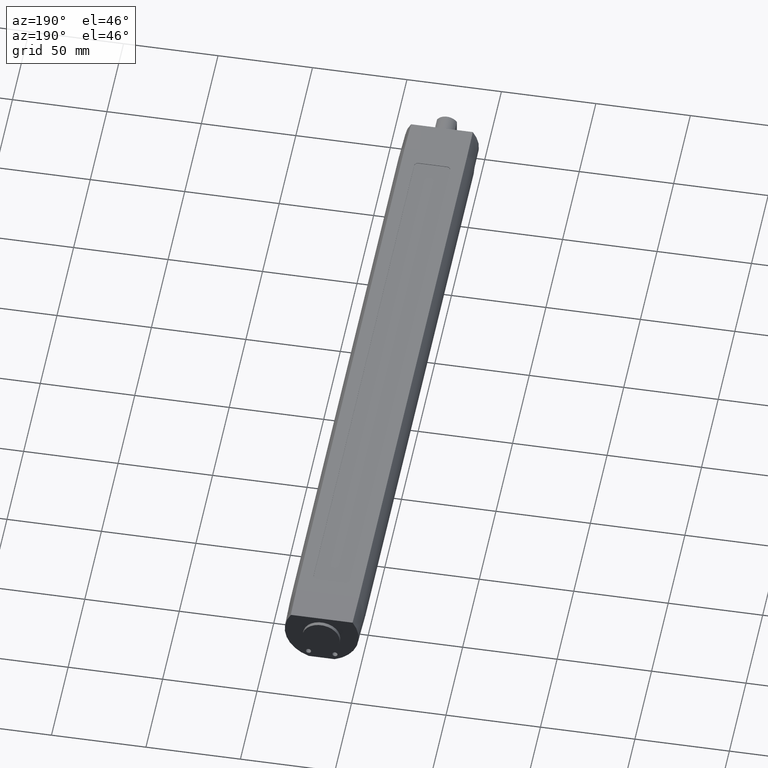
[diagram: clean part render]
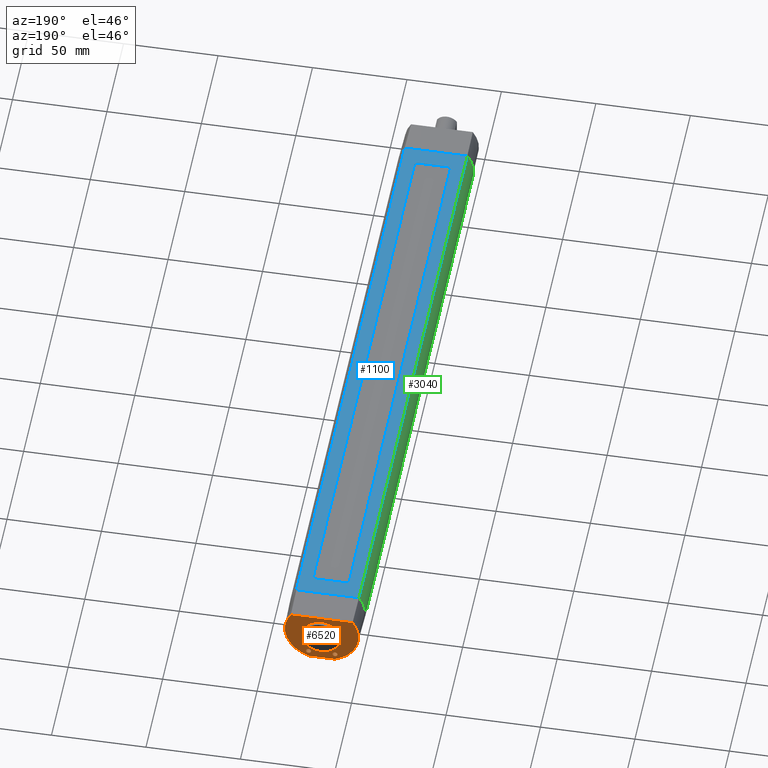
[diagram: same view with three faces highlighted in distinct colors, each labeled with its STEP entity id]
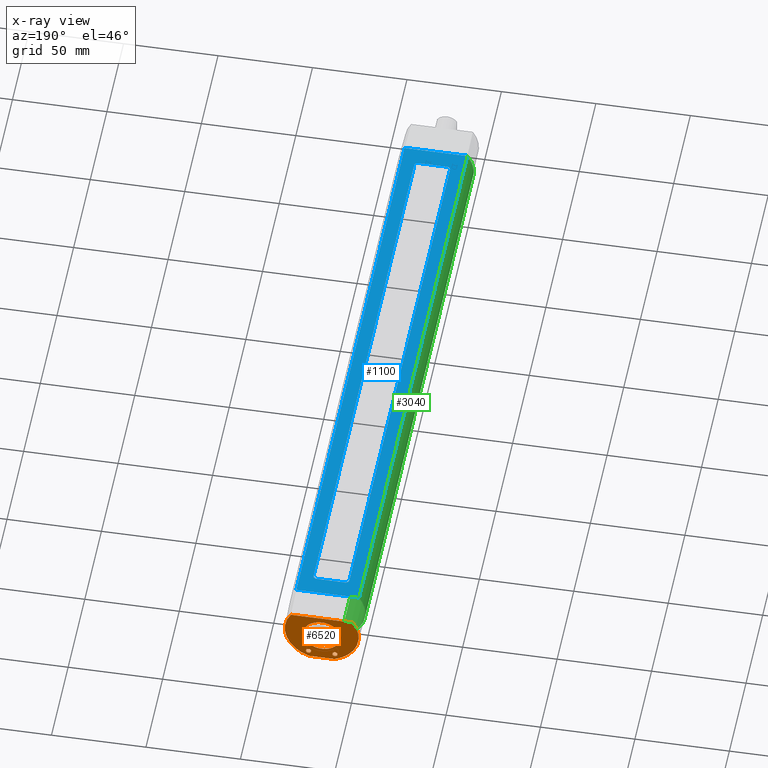
[diagram: x-ray of the same camera — body ghosted, the three highlighted faces saturated]
A machine part, auxiliary view with three faces highlighted in distinct colors.
The next image is the same camera in x-ray (body ghosted, the three faces saturated) — at least one of them is partly hidden behind the body in this view.
Their STEP definitions:

[orange] entity #6520 — the highlighted planar face has unit normal (0, -1, 0).
#2050=CARTESIAN_POINT('',(16.3345515631189,10.7600894754653,180.5));
#2060=VERTEX_POINT('',#2050);
#2090=CARTESIAN_POINT('',(-16.3345515631189,10.7600894754653,180.5));
#2100=DIRECTION('',(1.,0.,0.));
#2110=VECTOR('',#2100,1.);
#2120=LINE('',#2090,#2110);
#2130=CARTESIAN_POINT('',(-16.3345515631189,10.7600894754653,180.5));
#2140=VERTEX_POINT('',#2130);
#2150=EDGE_CURVE('',#2140,#2060,#2120,.T.);
#2490=CARTESIAN_POINT('',(6.88024154290118,-18.3100894754653,180.5));
#2500=VERTEX_POINT('',#2490);
#2550=CARTESIAN_POINT('',(0.,0.,180.5));
#2560=DIRECTION('',(0.,0.,1.));
#2570=DIRECTION('',(0.351748981083713,-0.936094361860261,0.));
#2580=AXIS2_PLACEMENT_3D('',#2550,#2560,#2570);
#2590=CIRCLE('',#2580,19.5600894754653);
#2600=EDGE_CURVE('',#2500,#2060,#2590,.T.);
#5830=CARTESIAN_POINT('',(0.,0.,180.5));
#5840=DIRECTION('',(0.,0.,-1.));
#5850=DIRECTION('',(1.,0.,0.));
#5860=AXIS2_PLACEMENT_3D('',#5830,#5840,#5850);
#5870=PLANE('',#5860);
#5880=CARTESIAN_POINT('',(0.,-1.9,180.5));
#5890=DIRECTION('',(0.,0.,-1.));
#5900=DIRECTION('',(-1.,1.12427648063307E-16,0.));
#5910=AXIS2_PLACEMENT_3D('',#5880,#5890,#5900);
#5920=CIRCLE('',#5910,9.875);
#5930=CARTESIAN_POINT('',(9.875,-1.9,180.5));
#5940=VERTEX_POINT('',#5930);
#5950=CARTESIAN_POINT('',(-9.875,-1.9,180.5));
#5960=VERTEX_POINT('',#5950);
#5970=EDGE_CURVE('',#5940,#5960,#5920,.T.);
#5980=ORIENTED_EDGE('',*,*,#5970,.T.);
#5990=EDGE_CURVE('',#5960,#5940,#5920,.T.);
#6000=ORIENTED_EDGE('',*,*,#5990,.T.);
#6010=EDGE_LOOP('',(#6000,#5980));
#6020=FACE_BOUND('',#6010,.T.);
#6030=CARTESIAN_POINT('',(0.,0.,180.5));
#6040=DIRECTION('',(0.,0.,1.));
#6050=DIRECTION('',(-1.,1.18586224797646E-15,0.));
#6060=AXIS2_PLACEMENT_3D('',#6030,#6040,#6050);
#6070=CIRCLE('',#6060,19.5600894754653);
#6080=CARTESIAN_POINT('',(-6.88024154290118,-18.3100894754653,180.5));
#6090=VERTEX_POINT('',#6080);
#6100=EDGE_CURVE('',#2140,#6090,#6070,.T.);
#6110=ORIENTED_EDGE('',*,*,#6100,.T.);
#6120=ORIENTED_EDGE('',*,*,#2150,.F.);
#6130=ORIENTED_EDGE('',*,*,#2600,.T.);
#6140=CARTESIAN_POINT('',(6.88024154290118,-18.3100894754653,180.5));
#6150=DIRECTION('',(-1.,0.,0.));
#6160=VECTOR('',#6150,1.);
#6170=LINE('',#6140,#6160);
#6180=EDGE_CURVE('',#2500,#6090,#6170,.T.);
#6190=ORIENTED_EDGE('',*,*,#6180,.F.);
#6200=EDGE_LOOP('',(#6190,#6130,#6120,#6110));
#6210=FACE_OUTER_BOUND('',#6200,.T.);
#6220=CARTESIAN_POINT('',(7.,-14.6000894754653,180.5));
#6230=DIRECTION('',(0.,0.,1.));
#6240=DIRECTION('',(1.,0.,0.));
#6250=AXIS2_PLACEMENT_3D('',#6220,#6230,#6240);
#6260=CIRCLE('',#6250,1.4);
#6270=CARTESIAN_POINT('',(8.4,-14.6000894754653,180.5));
#6280=VERTEX_POINT('',#6270);
#6290=CARTESIAN_POINT('',(5.6,-14.6000894754653,180.5));
#6300=VERTEX_POINT('',#6290);
#6310=EDGE_CURVE('',#6280,#6300,#6260,.T.);
#6320=ORIENTED_EDGE('',*,*,#6310,.F.);
#6330=EDGE_CURVE('',#6300,#6280,#6260,.T.);
#6340=ORIENTED_EDGE('',*,*,#6330,.F.);
#6350=EDGE_LOOP('',(#6340,#6320));
#6360=FACE_BOUND('',#6350,.T.);
#6370=CARTESIAN_POINT('',(-7.,-14.6000894754653,180.5));
#6380=DIRECTION('',(0.,0.,1.));
#6390=DIRECTION('',(1.,0.,0.));
#6400=AXIS2_PLACEMENT_3D('',#6370,#6380,#6390);
#6410=CIRCLE('',#6400,1.4);
#6420=CARTESIAN_POINT('',(-5.6,-14.6000894754653,180.5));
#6430=VERTEX_POINT('',#6420);
#6440=CARTESIAN_POINT('',(-8.4,-14.6000894754653,180.5));
#6450=VERTEX_POINT('',#6440);
#6460=EDGE_CURVE('',#6430,#6450,#6410,.T.);
#6470=ORIENTED_EDGE('',*,*,#6460,.F.);
#6480=EDGE_CURVE('',#6450,#6430,#6410,.T.);
#6490=ORIENTED_EDGE('',*,*,#6480,.F.);
#6500=EDGE_LOOP('',(#6490,#6470));
#6510=FACE_BOUND('',#6500,.T.);
#6520=ADVANCED_FACE('',(#6020,#6210,#6360,#6510),#5870,.F.);

[blue] entity #1100 — the highlighted planar face has unit normal (0, 0, 1).
#10=CARTESIAN_POINT('',(16.5698521417664,11.2,-162.5));
#20=DIRECTION('',(0.,1.,0.));
#30=DIRECTION('',(0.,0.,1.));
#40=AXIS2_PLACEMENT_3D('',#10,#20,#30);
#50=PLANE('',#40);
#60=CARTESIAN_POINT('',(7.49999999999999,11.2,-151.));
#70=DIRECTION('',(0.,1.,0.));
#80=DIRECTION('',(0.,0.,1.));
#90=AXIS2_PLACEMENT_3D('',#60,#70,#80);
#100=CIRCLE('',#90,2.);
#110=CARTESIAN_POINT('',(9.49999999999999,11.2,-151.));
#120=VERTEX_POINT('',#110);
#130=CARTESIAN_POINT('',(7.49999999999999,11.2,-153.));
#140=VERTEX_POINT('',#130);
#150=EDGE_CURVE('',#120,#140,#100,.T.);
#160=ORIENTED_EDGE('',*,*,#150,.F.);
#170=CARTESIAN_POINT('',(0.,11.2,-153.));
#180=DIRECTION('',(1.,0.,0.));
#190=VECTOR('',#180,1.);
#200=LINE('',#170,#190);
#210=CARTESIAN_POINT('',(-7.5,11.2,-153.));
#220=VERTEX_POINT('',#210);
#230=EDGE_CURVE('',#220,#140,#200,.T.);
#240=ORIENTED_EDGE('',*,*,#230,.T.);
#250=CARTESIAN_POINT('',(-7.49999999999999,11.2,-151.));
#260=DIRECTION('',(0.,1.,0.));
#270=DIRECTION('',(0.,0.,1.));
#280=AXIS2_PLACEMENT_3D('',#250,#260,#270);
#290=CIRCLE('',#280,2.);
#300=CARTESIAN_POINT('',(-9.49999999999999,11.2,-151.));
#310=VERTEX_POINT('',#300);
#320=EDGE_CURVE('',#220,#310,#290,.T.);
#330=ORIENTED_EDGE('',*,*,#320,.F.);
#340=CARTESIAN_POINT('',(-9.50000000000003,11.2,0.));
#350=DIRECTION('',(2.73184799366426E-16,0.,-1.));
#360=VECTOR('',#350,1.);
#370=LINE('',#340,#360);
#380=CARTESIAN_POINT('',(-9.49999999999999,11.2,151.));
#390=VERTEX_POINT('',#380);
#400=EDGE_CURVE('',#390,#310,#370,.T.);
#410=ORIENTED_EDGE('',*,*,#400,.T.);
#420=CARTESIAN_POINT('',(-7.49999999999999,11.2,151.));
#430=DIRECTION('',(0.,1.,0.));
#440=DIRECTION('',(0.,0.,-1.));
#450=AXIS2_PLACEMENT_3D('',#420,#430,#440);
#460=CIRCLE('',#450,2.);
#470=CARTESIAN_POINT('',(-7.5,11.2,153.));
#480=VERTEX_POINT('',#470);
#490=EDGE_CURVE('',#390,#480,#460,.T.);
#500=ORIENTED_EDGE('',*,*,#490,.F.);
#510=CARTESIAN_POINT('',(0.,11.2,153.));
#520=DIRECTION('',(-1.,0.,0.));
#530=VECTOR('',#520,1.);
#540=LINE('',#510,#530);
#550=CARTESIAN_POINT('',(7.49999999999999,11.2,153.));
#560=VERTEX_POINT('',#550);
#570=EDGE_CURVE('',#560,#480,#540,.T.);
#580=ORIENTED_EDGE('',*,*,#570,.T.);
#590=CARTESIAN_POINT('',(7.49999999999999,11.2,151.));
#600=DIRECTION('',(0.,1.,0.));
#610=DIRECTION('',(0.,0.,-1.));
#620=AXIS2_PLACEMENT_3D('',#590,#600,#610);
#630=CIRCLE('',#620,2.);
#640=CARTESIAN_POINT('',(9.50000000000009,11.2,151.));
#650=VERTEX_POINT('',#640);
#660=EDGE_CURVE('',#560,#650,#630,.T.);
#670=ORIENTED_EDGE('',*,*,#660,.F.);
#680=CARTESIAN_POINT('',(9.50000000000004,11.2,0.));
#690=DIRECTION('',(3.27821759239712E-16,0.,1.));
#700=VECTOR('',#690,1.);
#710=LINE('',#680,#700);
#720=EDGE_CURVE('',#120,#650,#710,.T.);
#730=ORIENTED_EDGE('',*,*,#720,.T.);
#740=EDGE_LOOP('',(#730,#670,#580,#500,#410,#330,#240,#160));
#750=FACE_BOUND('',#740,.T.);
#760=CARTESIAN_POINT('',(-16.5698521417664,11.2,162.5));
#770=DIRECTION('',(0.,0.,-1.));
#780=VECTOR('',#770,1.);
#790=LINE('',#760,#780);
#800=CARTESIAN_POINT('',(-16.5698521417664,11.2,162.5));
#810=VERTEX_POINT('',#800);
#820=CARTESIAN_POINT('',(-16.5698521417664,11.2,-162.5));
#830=VERTEX_POINT('',#820);
#840=EDGE_CURVE('',#810,#830,#790,.T.);
#850=ORIENTED_EDGE('',*,*,#840,.F.);
#860=CARTESIAN_POINT('',(16.5698521417664,11.2,-162.5));
#870=DIRECTION('',(-1.,0.,0.));
#880=VECTOR('',#870,1.);
#890=LINE('',#860,#880);
#900=CARTESIAN_POINT('',(16.5698521417664,11.2,-162.5));
#910=VERTEX_POINT('',#900);
#920=EDGE_CURVE('',#910,#830,#890,.T.);
#930=ORIENTED_EDGE('',*,*,#920,.T.);
#940=CARTESIAN_POINT('',(16.5698521417664,11.2,-162.5));
#950=DIRECTION('',(0.,0.,1.));
#960=VECTOR('',#950,1.);
#970=LINE('',#940,#960);
#980=CARTESIAN_POINT('',(16.5698521417664,11.2,162.5));
#990=VERTEX_POINT('',#980);
#1000=EDGE_CURVE('',#910,#990,#970,.T.);
#1010=ORIENTED_EDGE('',*,*,#1000,.F.);
#1020=CARTESIAN_POINT('',(-16.5698521417664,11.2,162.5));
#1030=DIRECTION('',(1.,0.,0.));
#1040=VECTOR('',#1030,1.);
#1050=LINE('',#1020,#1040);
#1060=EDGE_CURVE('',#810,#990,#1050,.T.);
#1070=ORIENTED_EDGE('',*,*,#1060,.T.);
#1080=EDGE_LOOP('',(#1070,#1010,#930,#850));
#1090=FACE_OUTER_BOUND('',#1080,.T.);
#1100=ADVANCED_FACE('',(#750,#1090),#50,.T.);

[green] entity #3040 — the highlighted cylindrical surface (partial cylindrical patch) has radius 20 mm, axis along (0, 1, 0).
#900=CARTESIAN_POINT('',(16.5698521417664,11.2,-162.5));
#910=VERTEX_POINT('',#900);
#940=CARTESIAN_POINT('',(16.5698521417664,11.2,-162.5));
#950=DIRECTION('',(0.,0.,1.));
#960=VECTOR('',#950,1.);
#970=LINE('',#940,#960);
#980=CARTESIAN_POINT('',(16.5698521417664,11.2,162.5));
#990=VERTEX_POINT('',#980);
#1000=EDGE_CURVE('',#910,#990,#970,.T.);
#2510=CARTESIAN_POINT('',(6.95970545353754,-18.75,162.5));
#2520=VERTEX_POINT('',#2510);
#2630=CARTESIAN_POINT('',(0.,0.,162.5));
#2640=DIRECTION('',(0.,0.,1.));
#2650=DIRECTION('',(0.347985272676877,-0.9375,0.));
#2660=AXIS2_PLACEMENT_3D('',#2630,#2640,#2650);
#2670=CIRCLE('',#2660,20.);
#2680=EDGE_CURVE('',#2520,#990,#2670,.T.);
#2800=CARTESIAN_POINT('',(0.,0.,-162.5));
#2810=DIRECTION('',(0.,0.,1.));
#2820=DIRECTION('',(1.,0.,0.));
#2830=AXIS2_PLACEMENT_3D('',#2800,#2810,#2820);
#2840=CYLINDRICAL_SURFACE('',#2830,20.);
#2850=CARTESIAN_POINT('',(0.,0.,-162.5));
#2860=DIRECTION('',(0.,0.,-1.));
#2870=DIRECTION('',(1.,-2.44929359829471E-16,0.));
#2880=AXIS2_PLACEMENT_3D('',#2850,#2860,#2870);
#2890=CIRCLE('',#2880,20.);
#2900=CARTESIAN_POINT('',(6.95970545353752,-18.75,-162.5));
#2910=VERTEX_POINT('',#2900);
#2920=EDGE_CURVE('',#910,#2910,#2890,.T.);
#2930=ORIENTED_EDGE('',*,*,#2920,.F.);
#2940=CARTESIAN_POINT('',(6.95970545353754,-18.75,162.5));
#2950=DIRECTION('',(0.,0.,-1.));
#2960=VECTOR('',#2950,1.);
#2970=LINE('',#2940,#2960);
#2980=EDGE_CURVE('',#2520,#2910,#2970,.T.);
#2990=ORIENTED_EDGE('',*,*,#2980,.T.);
#3000=ORIENTED_EDGE('',*,*,#2680,.F.);
#3010=ORIENTED_EDGE('',*,*,#1000,.T.);
#3020=EDGE_LOOP('',(#3010,#3000,#2990,#2930));
#3030=FACE_OUTER_BOUND('',#3020,.T.);
#3040=ADVANCED_FACE('',(#3030),#2840,.T.);